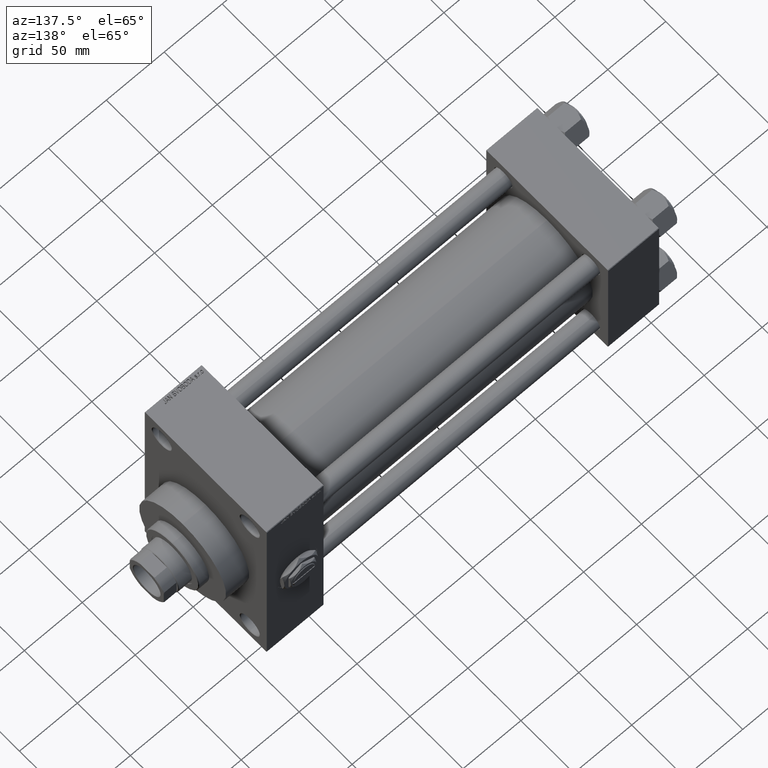
[diagram: clean part render]
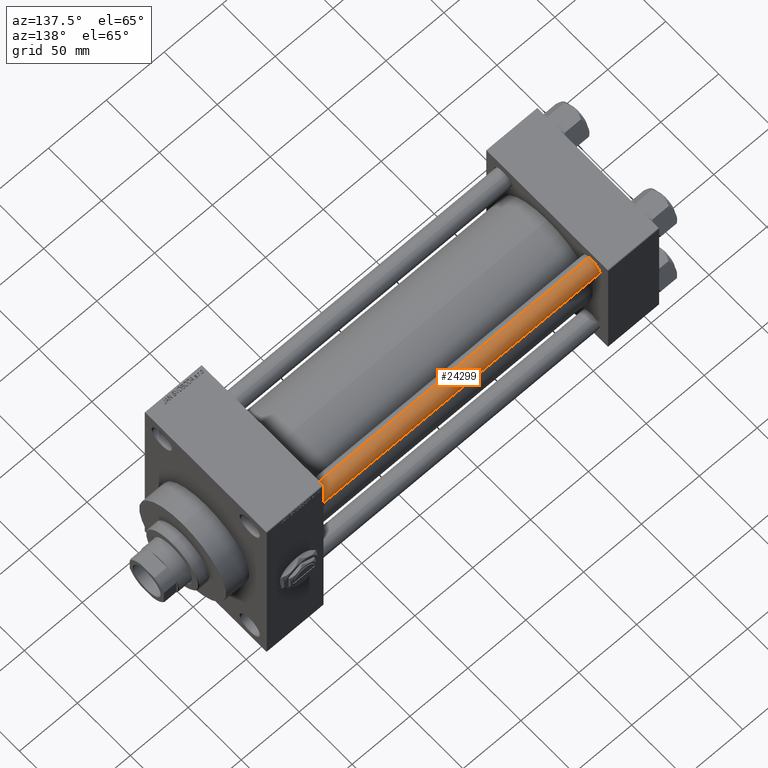
[diagram: same view with one face highlighted and labeled with its STEP entity id]
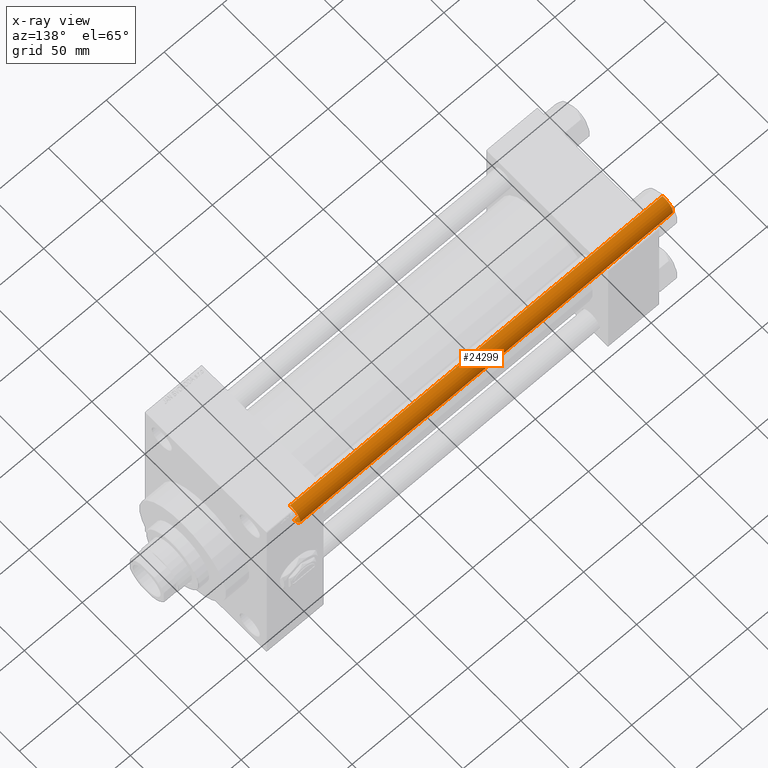
[diagram: x-ray of the same camera — body ghosted, the highlighted face saturated]
A machine part, auxiliary view. The second image highlights one B-rep face of the part: STEP entity #24299.
The next image is the same camera in x-ray: the body ghosted, the highlighted face saturated — about 0% of this face is hidden behind the body in this view.
In plain terms, the highlighted cylindrical surface (edge-blend (fillet) strip) has radius 8 mm, axis along (-1, -0, 0).
Its self-contained STEP definition (entity closure, byte-faithful):
#1005 = LINE ( 'NONE', #24124, #16290 ) ;
#1059 = LINE ( 'NONE', #27422, #20759 ) ;
#2815 = VERTEX_POINT ( 'NONE', #6078 ) ;
#4722 = DIRECTION ( 'NONE',  ( -0.000000000000000000, -0.000000000000000000, -1.000000000000000000 ) ) ;
#6078 = CARTESIAN_POINT ( 'NONE',  ( -8.000000000000000000, 0.000000000000000000, 0.5000000000000004441 ) ) ;
#6134 = AXIS2_PLACEMENT_3D ( 'NONE', #47011, #6863, #25536 ) ;
#6863 = DIRECTION ( 'NONE',  ( -0.000000000000000000, -0.000000000000000000, 1.000000000000000000 ) ) ;
#7063 = CARTESIAN_POINT ( 'NONE',  ( 8.000000000000000000, 9.797174393178825657E-16, 322.5000000000000000 ) ) ;
#9009 = DIRECTION ( 'NONE',  ( -0.000000000000000000, -0.000000000000000000, -1.000000000000000000 ) ) ;
#9086 = ORIENTED_EDGE ( 'NONE', *, *, #25133, .T. ) ;
#11509 = CARTESIAN_POINT ( 'NONE',  ( 0.000000000000000000, 0.000000000000000000, 322.5000000000000000 ) ) ;
#14345 = AXIS2_PLACEMENT_3D ( 'NONE', #11509, #26685, #22942 ) ;
#16290 = VECTOR ( 'NONE', #4722, 1000.000000000000000 ) ;
#16470 = CIRCLE ( 'NONE', #6134, 8.000000000000000000 ) ;
#20268 = VERTEX_POINT ( 'NONE', #32395 ) ;
#20759 = VECTOR ( 'NONE', #9009, 1000.000000000000000 ) ;
#21293 = VERTEX_POINT ( 'NONE', #7063 ) ;
#21548 = FACE_OUTER_BOUND ( 'NONE', #35026, .T. ) ;
#21921 = ORIENTED_EDGE ( 'NONE', *, *, #47263, .F. ) ;
#22942 = DIRECTION ( 'NONE',  ( 1.000000000000000000, 0.000000000000000000, 0.000000000000000000 ) ) ;
#24124 = CARTESIAN_POINT ( 'NONE',  ( 8.000000000000000000, 9.797174393178825657E-16, 323.0000000000000000 ) ) ;
#24299 = ADVANCED_FACE ( 'NONE', ( #21548 ), #37713, .T. ) ;
#25133 = EDGE_CURVE ( 'NONE', #21293, #38187, #1005, .T. ) ;
#25536 = DIRECTION ( 'NONE',  ( 1.000000000000000000, 0.000000000000000000, 0.000000000000000000 ) ) ;
#25545 = DIRECTION ( 'NONE',  ( -0.000000000000000000, -0.000000000000000000, -1.000000000000000000 ) ) ;
#26024 = DIRECTION ( 'NONE',  ( -1.000000000000000000, 0.000000000000000000, 0.000000000000000000 ) ) ;
#26435 = ORIENTED_EDGE ( 'NONE', *, *, #45709, .T. ) ;
#26685 = DIRECTION ( 'NONE',  ( 0.000000000000000000, 0.000000000000000000, -1.000000000000000000 ) ) ;
#27375 = AXIS2_PLACEMENT_3D ( 'NONE', #29750, #25545, #26024 ) ;
#27422 = CARTESIAN_POINT ( 'NONE',  ( -8.000000000000000000, 0.000000000000000000, 323.0000000000000000 ) ) ;
#29453 = CIRCLE ( 'NONE', #14345, 8.000000000000000000 ) ;
#29750 = CARTESIAN_POINT ( 'NONE',  ( 0.000000000000000000, 0.000000000000000000, 323.0000000000000000 ) ) ;
#32395 = CARTESIAN_POINT ( 'NONE',  ( -8.000000000000000000, 0.000000000000000000, 322.5000000000000000 ) ) ;
#34736 = EDGE_CURVE ( 'NONE', #38187, #2815, #16470, .T. ) ;
#35026 = EDGE_LOOP ( 'NONE', ( #26435, #9086, #39897, #21921 ) ) ;
#37713 = CYLINDRICAL_SURFACE ( 'NONE', #27375, 8.000000000000000000 ) ;
#38187 = VERTEX_POINT ( 'NONE', #39936 ) ;
#39897 = ORIENTED_EDGE ( 'NONE', *, *, #34736, .T. ) ;
#39936 = CARTESIAN_POINT ( 'NONE',  ( 8.000000000000000000, 9.797174393178825657E-16, 0.5000000000000004441 ) ) ;
#45709 = EDGE_CURVE ( 'NONE', #20268, #21293, #29453, .T. ) ;
#47011 = CARTESIAN_POINT ( 'NONE',  ( 0.000000000000000000, 0.000000000000000000, 0.5000000000000004441 ) ) ;
#47263 = EDGE_CURVE ( 'NONE', #20268, #2815, #1059, .T. ) ;